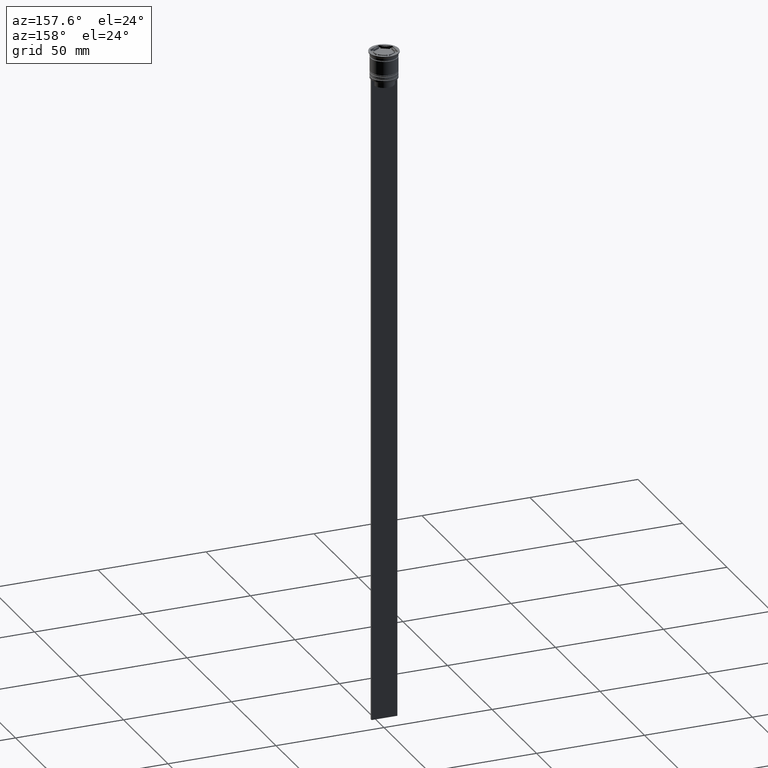
[diagram: clean part render]
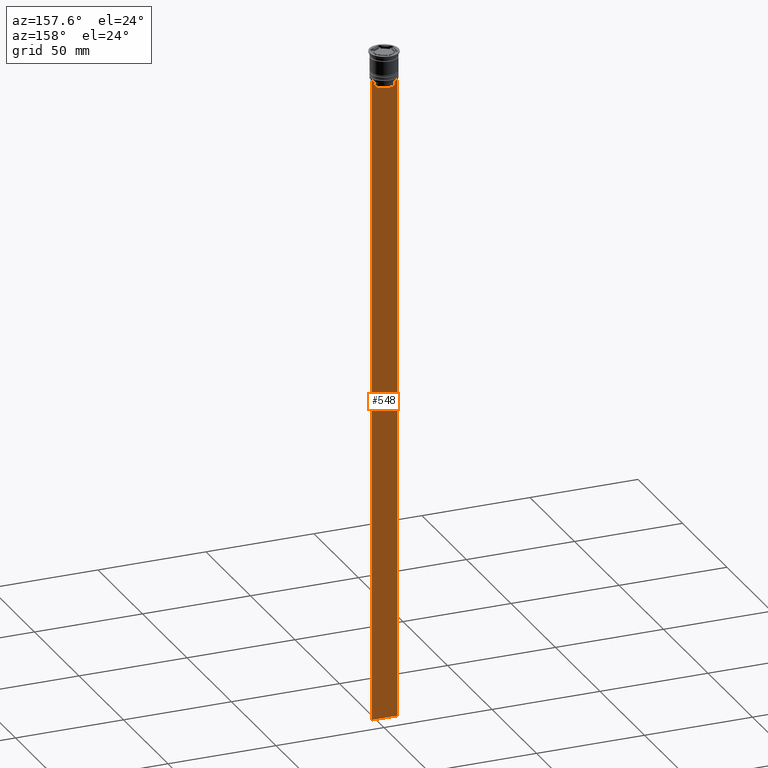
[diagram: same view with one face highlighted and labeled with its STEP entity id]
A machine part, auxiliary view. The second image highlights one B-rep face of the part: STEP entity #548.
In plain terms, the highlighted planar face has unit normal (0, -1, -0).
Its self-contained STEP definition (entity closure, byte-faithful):
#4 = VERTEX_POINT ( 'NONE', #916 ) ;
#7 = ORIENTED_EDGE ( 'NONE', *, *, #1627, .F. ) ;
#8 = ORIENTED_EDGE ( 'NONE', *, *, #256, .T. ) ;
#16 = CARTESIAN_POINT ( 'NONE',  ( 4.958169719475987058, 0.4999999999999982792, -12.66670967060858111 ) ) ;
#44 = ORIENTED_EDGE ( 'NONE', *, *, #592, .T. ) ;
#103 = CARTESIAN_POINT ( 'NONE',  ( -5.125670687822231564, 0.4999999999999982792, -12.50000000000000000 ) ) ;
#119 = EDGE_CURVE ( 'NONE', #844, #1763, #1327, .T. ) ;
#131 = EDGE_CURVE ( 'NONE', #1763, #2033, #1491, .T. ) ;
#196 = LINE ( 'NONE', #2124, #1986 ) ;
#197 = VERTEX_POINT ( 'NONE', #1020 ) ;
#229 = VERTEX_POINT ( 'NONE', #1706 ) ;
#256 = EDGE_CURVE ( 'NONE', #197, #4, #715, .T. ) ;
#257 = VECTOR ( 'NONE', #1442, 1000.000000000000000 ) ;
#284 = VECTOR ( 'NONE', #932, 1000.000000000000000 ) ;
#354 = DIRECTION ( 'NONE',  ( 1.000000000000000000, 0.000000000000000000, 0.000000000000000000 ) ) ;
#422 = VERTEX_POINT ( 'NONE', #2014 ) ;
#431 = VERTEX_POINT ( 'NONE', #793 ) ;
#436 = CARTESIAN_POINT ( 'NONE',  ( 6.000000000000016875, 0.4999999999999982792, -12.50000000000000000 ) ) ;
#475 = LINE ( 'NONE', #1724, #1773 ) ;
#517 = VECTOR ( 'NONE', #354, 1000.000000000000000 ) ;
#548 = ADVANCED_FACE ( 'NONE', ( #1212 ), #629, .F. ) ;
#592 = EDGE_CURVE ( 'NONE', #2033, #422, #475, .T. ) ;
#608 = ORIENTED_EDGE ( 'NONE', *, *, #933, .T. ) ;
#629 = PLANE ( 'NONE',  #2153 ) ;
#715 = LINE ( 'NONE', #1085, #257 ) ;
#774 = ORIENTED_EDGE ( 'NONE', *, *, #1276, .T. ) ;
#793 = CARTESIAN_POINT ( 'NONE',  ( 4.623040125285526436, 0.4999999999999982792, -13.00000000000000178 ) ) ;
#808 = VERTEX_POINT ( 'NONE', #2053 ) ;
#844 = VERTEX_POINT ( 'NONE', #1480 ) ;
#849 = CARTESIAN_POINT ( 'NONE',  ( -5.125670687822231564, 0.4999999999999982792, -12.50000000000000000 ) ) ;
#916 = CARTESIAN_POINT ( 'NONE',  ( -5.999999999999983125, 0.4999999999999982792, -312.5000000000000000 ) ) ;
#917 = EDGE_LOOP ( 'NONE', ( #1525, #1243, #44, #2072, #1821, #1325, #774, #608, #8, #7 ) ) ;
#927 = CARTESIAN_POINT ( 'NONE',  ( -4.623040125285526436, 0.4999999999999982792, -13.00000000000000178 ) ) ;
#932 = DIRECTION ( 'NONE',  ( 1.000000000000000000, 0.000000000000000000, 0.000000000000000000 ) ) ;
#933 = EDGE_CURVE ( 'NONE', #1806, #197, #1195, .T. ) ;
#1020 = CARTESIAN_POINT ( 'NONE',  ( 6.000000000000016875, 0.4999999999999982792, -312.5000000000000000 ) ) ;
#1041 = DIRECTION ( 'NONE',  ( -0.000000000000000000, -0.000000000000000000, 1.000000000000000000 ) ) ;
#1085 = CARTESIAN_POINT ( 'NONE',  ( 6.000000000000016875, 0.4999999999999982792, -312.5000000000000000 ) ) ;
#1107 = EDGE_CURVE ( 'NONE', #422, #808, #2303, .T. ) ;
#1110 = LINE ( 'NONE', #1836, #284 ) ;
#1140 = CARTESIAN_POINT ( 'NONE',  ( 6.000000000000016875, 0.4999999999999982792, -12.50000000000000000 ) ) ;
#1144 = B_SPLINE_CURVE_WITH_KNOTS ( 'NONE', 3,
 ( #1448, #2186, #16, #1281 ),
 .UNSPECIFIED., .F., .F.,
 ( 4, 4 ),
 ( 0.02203698174624552433, 0.02275222543365896036 ),
 .UNSPECIFIED. ) ;
#1171 = DIRECTION ( 'NONE',  ( 0.000000000000000000, 0.000000000000000000, -1.000000000000000000 ) ) ;
#1194 = EDGE_CURVE ( 'NONE', #808, #431, #196, .T. ) ;
#1195 = LINE ( 'NONE', #2110, #1452 ) ;
#1212 = FACE_OUTER_BOUND ( 'NONE', #917, .T. ) ;
#1243 = ORIENTED_EDGE ( 'NONE', *, *, #131, .T. ) ;
#1276 = EDGE_CURVE ( 'NONE', #229, #1806, #1110, .T. ) ;
#1281 = CARTESIAN_POINT ( 'NONE',  ( 5.125670687822231564, 0.4999999999999982792, -12.50000000000000000 ) ) ;
#1325 = ORIENTED_EDGE ( 'NONE', *, *, #1996, .T. ) ;
#1327 = LINE ( 'NONE', #436, #1880 ) ;
#1337 = DIRECTION ( 'NONE',  ( 1.000000000000000000, 0.000000000000000000, 0.000000000000000000 ) ) ;
#1378 = DIRECTION ( 'NONE',  ( 0.000000000000000000, 0.000000000000000000, -1.000000000000000000 ) ) ;
#1386 = LINE ( 'NONE', #2125, #1608 ) ;
#1408 = CARTESIAN_POINT ( 'NONE',  ( 0.000000000000000000, 0.4999999999999987232, -15.50000000000000000 ) ) ;
#1442 = DIRECTION ( 'NONE',  ( -1.000000000000000000, 0.000000000000000000, 0.000000000000000000 ) ) ;
#1448 = CARTESIAN_POINT ( 'NONE',  ( 4.623040125285526436, 0.4999999999999982792, -13.00000000000000178 ) ) ;
#1452 = VECTOR ( 'NONE', #1171, 1000.000000000000000 ) ;
#1480 = CARTESIAN_POINT ( 'NONE',  ( -5.999999999999983125, 0.4999999999999985012, -12.50000000000000000 ) ) ;
#1491 = B_SPLINE_CURVE_WITH_KNOTS ( 'NONE', 3,
 ( #849, #1723, #1567, #2293 ),
 .UNSPECIFIED., .F., .F.,
 ( 4, 4 ),
 ( 0.008759809102772707357, 0.009468778395565351919 ),
 .UNSPECIFIED. ) ;
#1525 = ORIENTED_EDGE ( 'NONE', *, *, #119, .T. ) ;
#1567 = CARTESIAN_POINT ( 'NONE',  ( -4.790630915080666519, 0.4999999999999982792, -12.83338087185995313 ) ) ;
#1568 = CARTESIAN_POINT ( 'NONE',  ( 6.000000000000016875, 0.4999999999999982792, -0.4584054212077061097 ) ) ;
#1608 = VECTOR ( 'NONE', #1934, 1000.000000000000000 ) ;
#1627 = EDGE_CURVE ( 'NONE', #844, #4, #1386, .T. ) ;
#1706 = CARTESIAN_POINT ( 'NONE',  ( 5.125670687822231564, 0.4999999999999982792, -12.50000000000000000 ) ) ;
#1723 = CARTESIAN_POINT ( 'NONE',  ( -4.958169823806762189, 0.4999999999999982792, -12.66670956677067750 ) ) ;
#1724 = CARTESIAN_POINT ( 'NONE',  ( -4.623040125285526436, 0.4999999999999982792, 0.000000000000000000 ) ) ;
#1763 = VERTEX_POINT ( 'NONE', #103 ) ;
#1773 = VECTOR ( 'NONE', #1899, 1000.000000000000000 ) ;
#1806 = VERTEX_POINT ( 'NONE', #1140 ) ;
#1821 = ORIENTED_EDGE ( 'NONE', *, *, #1194, .T. ) ;
#1836 = CARTESIAN_POINT ( 'NONE',  ( 6.000000000000016875, 0.4999999999999982792, -12.50000000000000000 ) ) ;
#1880 = VECTOR ( 'NONE', #1337, 1000.000000000000000 ) ;
#1899 = DIRECTION ( 'NONE',  ( 0.000000000000000000, 0.000000000000000000, -1.000000000000000000 ) ) ;
#1934 = DIRECTION ( 'NONE',  ( 0.000000000000000000, 0.000000000000000000, -1.000000000000000000 ) ) ;
#1986 = VECTOR ( 'NONE', #1041, 1000.000000000000000 ) ;
#1996 = EDGE_CURVE ( 'NONE', #431, #229, #1144, .T. ) ;
#2014 = CARTESIAN_POINT ( 'NONE',  ( -4.623040125285526436, 0.4999999999999987232, -15.50000000000000000 ) ) ;
#2033 = VERTEX_POINT ( 'NONE', #927 ) ;
#2053 = CARTESIAN_POINT ( 'NONE',  ( 4.623040125285526436, 0.4999999999999987232, -15.50000000000000000 ) ) ;
#2072 = ORIENTED_EDGE ( 'NONE', *, *, #1107, .T. ) ;
#2110 = CARTESIAN_POINT ( 'NONE',  ( 6.000000000000016875, 0.4999999999999982792, -0.4584054212077061097 ) ) ;
#2124 = CARTESIAN_POINT ( 'NONE',  ( 4.623040125285526436, 0.4999999999999982792, 0.000000000000000000 ) ) ;
#2125 = CARTESIAN_POINT ( 'NONE',  ( -5.999999999999983125, 0.4999999999999982792, -0.4584054212077061097 ) ) ;
#2153 = AXIS2_PLACEMENT_3D ( 'NONE', #1568, #2282, #1378 ) ;
#2186 = CARTESIAN_POINT ( 'NONE',  ( 4.790630799407576745, 0.4999999999999982792, -12.83338098686239093 ) ) ;
#2282 = DIRECTION ( 'NONE',  ( 0.000000000000000000, -1.000000000000000000, -0.000000000000000000 ) ) ;
#2293 = CARTESIAN_POINT ( 'NONE',  ( -4.623040125285526436, 0.4999999999999982792, -13.00000000000000178 ) ) ;
#2303 = LINE ( 'NONE', #1408, #517 ) ;